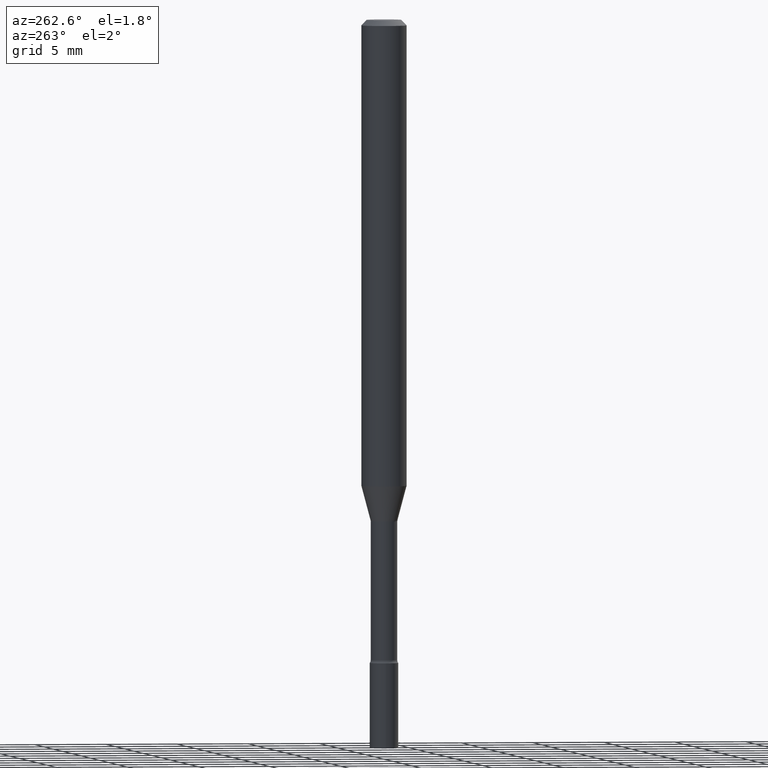
[diagram: clean part render]
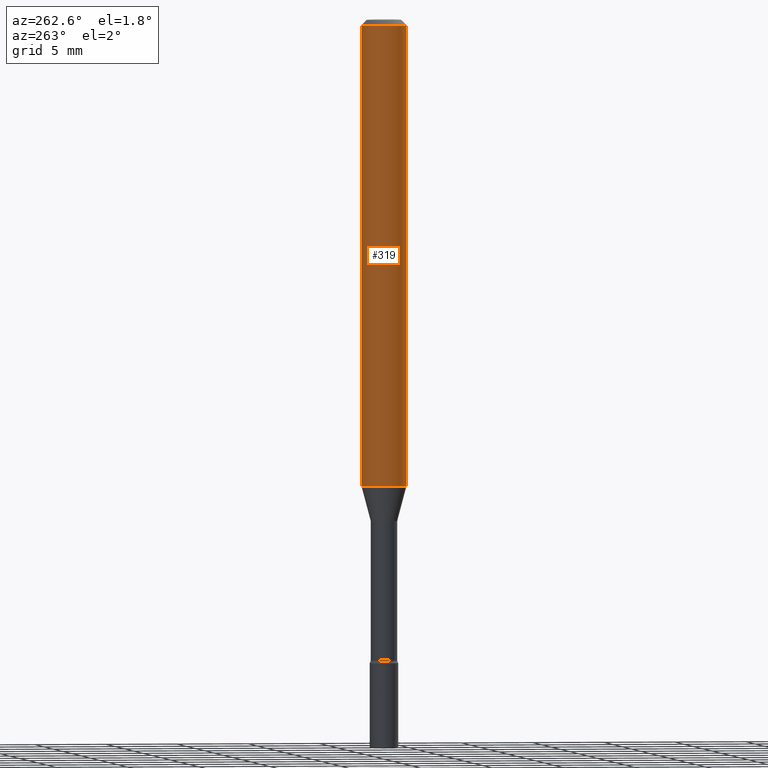
[diagram: same view with one face highlighted and labeled with its STEP entity id]
A machine part, auxiliary view. The second image highlights one B-rep face of the part: STEP entity #319.
In plain terms, the highlighted cylindrical surface (edge-blend (fillet) strip) has radius 1.5875 mm, axis along (-0, 0, 1).
Its self-contained STEP definition (entity closure, byte-faithful):
#6 = CARTESIAN_POINT ( 'NONE',  ( 4.440892098500940720E-16, 0.06249999999999995143, -0.01500000000000024751 ) ) ;
#10 = VECTOR ( 'NONE', #377, 39.37007874015748143 ) ;
#15 = VERTEX_POINT ( 'NONE', #518 ) ;
#16 = DIRECTION ( 'NONE',  ( -6.982962677686265922E-15, -1.000000000000000000, 3.491505194639095236E-15 ) ) ;
#23 = AXIS2_PLACEMENT_3D ( 'NONE', #257, #32, #263 ) ;
#25 = VERTEX_POINT ( 'NONE', #186 ) ;
#32 = DIRECTION ( 'NONE',  ( -2.445452147771860256E-29, 3.491505194639095236E-15, 1.000000000000000000 ) ) ;
#61 = CARTESIAN_POINT ( 'NONE',  ( -4.364351673553916201E-16, -0.06250000000000000000, 2.182190746649434522E-16 ) ) ;
#82 = LINE ( 'NONE', #444, #176 ) ;
#111 = ORIENTED_EDGE ( 'NONE', *, *, #172, .F. ) ;
#128 = AXIS2_PLACEMENT_3D ( 'NONE', #358, #362, #443 ) ;
#134 = AXIS2_PLACEMENT_3D ( 'NONE', #418, #205, #16 ) ;
#153 = DIRECTION ( 'NONE',  ( -2.445452147771860256E-29, 3.491505194639094841E-15, 1.000000000000000000 ) ) ;
#169 = EDGE_CURVE ( 'NONE', #197, #15, #213, .T. ) ;
#172 = EDGE_CURVE ( 'NONE', #25, #197, #82, .T. ) ;
#176 = VECTOR ( 'NONE', #153, 39.37007874015748143 ) ;
#186 = CARTESIAN_POINT ( 'NONE',  ( 4.440892098500935790E-16, 0.06249999999999550360, -1.279526486624345205 ) ) ;
#197 = VERTEX_POINT ( 'NONE', #6 ) ;
#204 = FACE_OUTER_BOUND ( 'NONE', #298, .T. ) ;
#205 = DIRECTION ( 'NONE',  ( -2.445452147771860256E-29, 3.491505194639095236E-15, 1.000000000000000000 ) ) ;
#210 = LINE ( 'NONE', #61, #10 ) ;
#213 = CIRCLE ( 'NONE', #128, 0.06250000000000000000 ) ;
#214 = CIRCLE ( 'NONE', #23, 0.06250000000000000000 ) ;
#236 = EDGE_CURVE ( 'NONE', #352, #15, #210, .T. ) ;
#257 = CARTESIAN_POINT ( 'NONE',  ( 3.129020794846486150E-29, -4.467473374727209710E-15, -1.279526486624344761 ) ) ;
#263 = DIRECTION ( 'NONE',  ( -6.982962677686265922E-15, -1.000000000000000000, 4.370956789862821150E-15 ) ) ;
#298 = EDGE_LOOP ( 'NONE', ( #111, #379, #440, #324 ) ) ;
#319 = ADVANCED_FACE ( 'NONE', ( #204 ), #413, .T. ) ;
#324 = ORIENTED_EDGE ( 'NONE', *, *, #169, .F. ) ;
#352 = VERTEX_POINT ( 'NONE', #483 ) ;
#358 = CARTESIAN_POINT ( 'NONE',  ( 3.668178221657797460E-31, -5.237257791958653577E-17, -0.01500000000000003067 ) ) ;
#362 = DIRECTION ( 'NONE',  ( -2.445452147771860256E-29, 3.491505194639095236E-15, 1.000000000000000000 ) ) ;
#377 = DIRECTION ( 'NONE',  ( -2.445452147771860256E-29, 3.491505194639094841E-15, 1.000000000000000000 ) ) ;
#379 = ORIENTED_EDGE ( 'NONE', *, *, #388, .T. ) ;
#388 = EDGE_CURVE ( 'NONE', #25, #352, #214, .T. ) ;
#413 = CYLINDRICAL_SURFACE ( 'NONE', #134, 0.06250000000000000000 ) ;
#418 = CARTESIAN_POINT ( 'NONE',  ( 0.000000000000000000, 0.000000000000000000, 0.000000000000000000 ) ) ;
#440 = ORIENTED_EDGE ( 'NONE', *, *, #236, .T. ) ;
#443 = DIRECTION ( 'NONE',  ( -6.982962677686265922E-15, -1.000000000000000000, 3.483106191921935554E-15 ) ) ;
#444 = CARTESIAN_POINT ( 'NONE',  ( 4.440892098500625669E-16, 0.06250000000000000000, -2.182190746649434522E-16 ) ) ;
#483 = CARTESIAN_POINT ( 'NONE',  ( -4.364351673553605587E-16, -0.06250000000000449640, -1.279526486624344539 ) ) ;
#518 = CARTESIAN_POINT ( 'NONE',  ( -4.364351673553912750E-16, -0.06250000000000005551, -0.01499999999999981209 ) ) ;